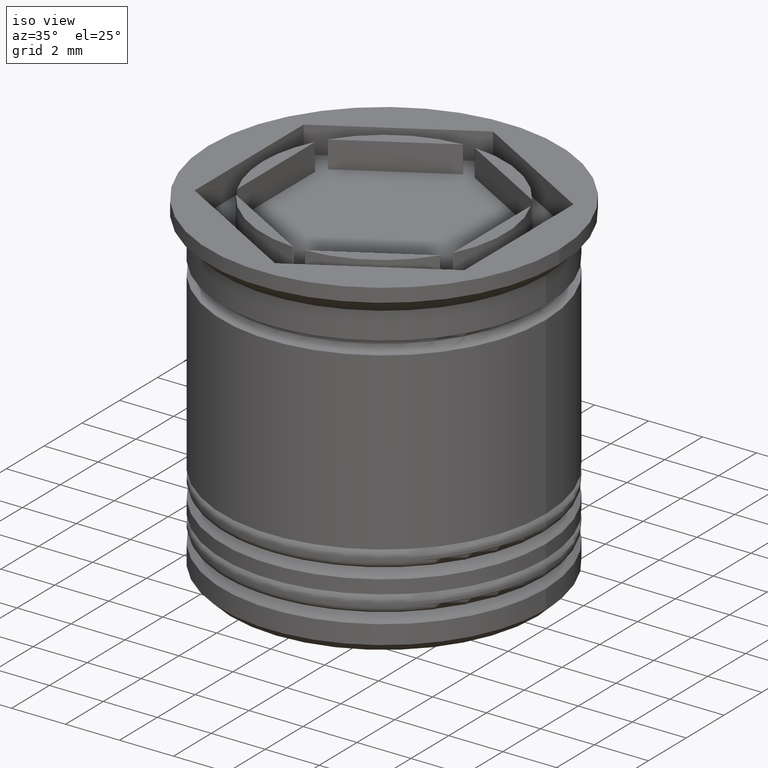
[diagram: clean part render]
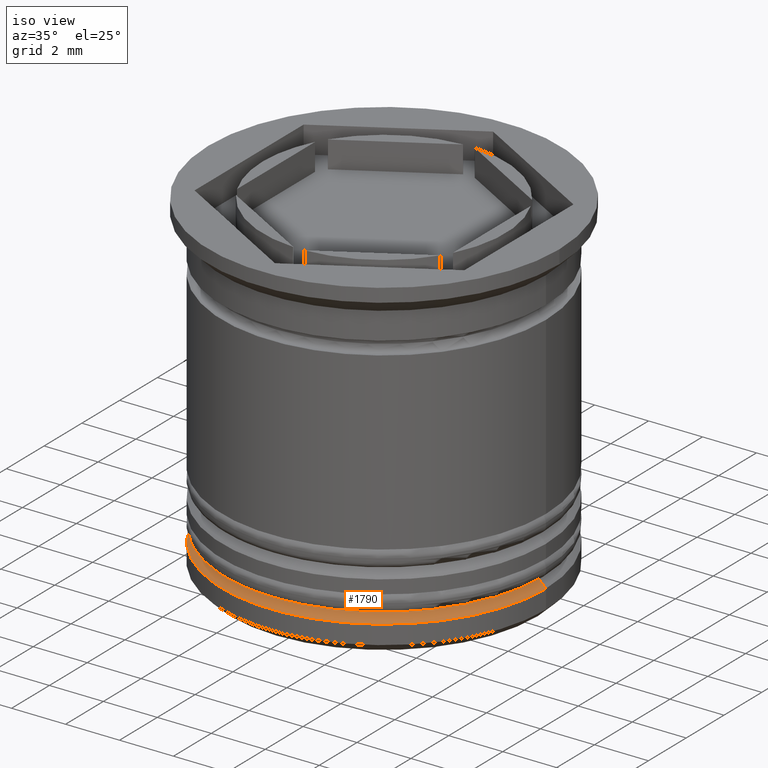
[diagram: same view with one face highlighted and labeled with its STEP entity id]
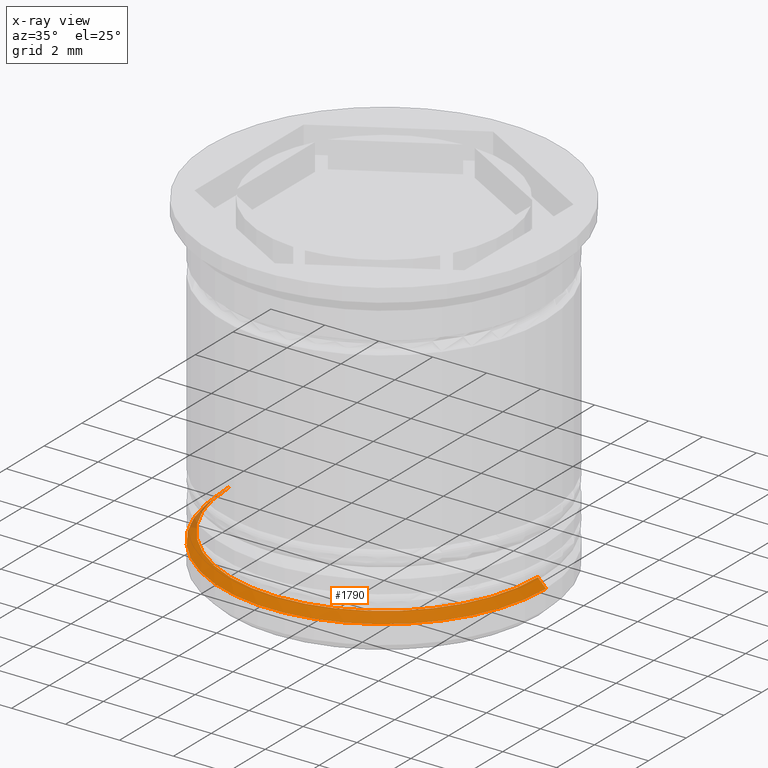
[diagram: x-ray of the same camera — body ghosted, the highlighted face saturated]
A machine part, iso view. The second image highlights one B-rep face of the part: STEP entity #1790.
The next image is the same camera in x-ray: the body ghosted, the highlighted face saturated — about 2% of this face is hidden behind the body in this view.
In plain terms, the highlighted conical surface has half-angle 45 deg.
Its self-contained STEP definition (entity closure, byte-faithful):
#1 = EDGE_CURVE ( 'NONE', #123, #1403, #924, .T. ) ;
#107 = CARTESIAN_POINT ( 'NONE',  ( 5.700000000000000178, 0.000000000000000000, -11.20000000000000639 ) ) ;
#114 = LINE ( 'NONE', #1207, #993 ) ;
#123 = VERTEX_POINT ( 'NONE', #1272 ) ;
#179 = CARTESIAN_POINT ( 'NONE',  ( 0.000000000000000000, 0.000000000000000000, -11.20000000000000639 ) ) ;
#318 = DIRECTION ( 'NONE',  ( -0.000000000000000000, -0.000000000000000000, 1.000000000000000000 ) ) ;
#322 = CONICAL_SURFACE ( 'NONE', #779, 5.499999999999992895, 0.7853981633974533860 ) ;
#329 = DIRECTION ( 'NONE',  ( -1.000000000000000000, 0.000000000000000000, 0.000000000000000000 ) ) ;
#405 = VERTEX_POINT ( 'NONE', #107 ) ;
#475 = CARTESIAN_POINT ( 'NONE',  ( 5.499999999999992895, 6.735557395310433148E-16, -11.00000000000000178 ) ) ;
#532 = CARTESIAN_POINT ( 'NONE',  ( -6.000000000000001776, 7.347880794884121708E-16, -11.50000000000000533 ) ) ;
#558 = DIRECTION ( 'NONE',  ( 0.000000000000000000, 0.000000000000000000, -1.000000000000000000 ) ) ;
#615 = EDGE_CURVE ( 'NONE', #405, #123, #644, .T. ) ;
#644 = LINE ( 'NONE', #475, #1763 ) ;
#681 = AXIS2_PLACEMENT_3D ( 'NONE', #179, #318, #329 ) ;
#720 = ORIENTED_EDGE ( 'NONE', *, *, #1802, .F. ) ;
#752 = DIRECTION ( 'NONE',  ( -1.000000000000000000, 0.000000000000000000, 0.000000000000000000 ) ) ;
#779 = AXIS2_PLACEMENT_3D ( 'NONE', #1958, #1811, #752 ) ;
#809 = EDGE_CURVE ( 'NONE', #1866, #1403, #114, .T. ) ;
#924 = CIRCLE ( 'NONE', #1577, 6.000000000000001776 ) ;
#993 = VECTOR ( 'NONE', #1789, 1000.000000000000000 ) ;
#1012 = CARTESIAN_POINT ( 'NONE',  ( 0.000000000000000000, 0.000000000000000000, -11.50000000000000533 ) ) ;
#1170 = FACE_OUTER_BOUND ( 'NONE', #1337, .T. ) ;
#1173 = DIRECTION ( 'NONE',  ( -1.000000000000000000, 0.000000000000000000, 0.000000000000000000 ) ) ;
#1205 = ORIENTED_EDGE ( 'NONE', *, *, #1, .F. ) ;
#1207 = CARTESIAN_POINT ( 'NONE',  ( -5.499999999999992895, 0.000000000000000000, -11.00000000000000178 ) ) ;
#1233 = CIRCLE ( 'NONE', #681, 5.700000000000000178 ) ;
#1248 = CARTESIAN_POINT ( 'NONE',  ( -5.700000000000000178, 6.980486755139913108E-16, -11.20000000000000639 ) ) ;
#1272 = CARTESIAN_POINT ( 'NONE',  ( 6.000000000000001776, 0.000000000000000000, -11.50000000000000533 ) ) ;
#1337 = EDGE_LOOP ( 'NONE', ( #1566, #720, #1681, #1205 ) ) ;
#1403 = VERTEX_POINT ( 'NONE', #532 ) ;
#1566 = ORIENTED_EDGE ( 'NONE', *, *, #615, .F. ) ;
#1575 = DIRECTION ( 'NONE',  ( 0.7071067811865512365, 8.659560562354978464E-17, -0.7071067811865439090 ) ) ;
#1577 = AXIS2_PLACEMENT_3D ( 'NONE', #1012, #558, #1173 ) ;
#1681 = ORIENTED_EDGE ( 'NONE', *, *, #809, .T. ) ;
#1763 = VECTOR ( 'NONE', #1575, 1000.000000000000000 ) ;
#1789 = DIRECTION ( 'NONE',  ( -0.7071067811865512365, 0.000000000000000000, -0.7071067811865439090 ) ) ;
#1790 = ADVANCED_FACE ( 'NONE', ( #1170 ), #322, .T. ) ;
#1802 = EDGE_CURVE ( 'NONE', #1866, #405, #1233, .T. ) ;
#1811 = DIRECTION ( 'NONE',  ( 0.000000000000000000, 0.000000000000000000, -1.000000000000000000 ) ) ;
#1866 = VERTEX_POINT ( 'NONE', #1248 ) ;
#1958 = CARTESIAN_POINT ( 'NONE',  ( 0.000000000000000000, 0.000000000000000000, -11.00000000000000178 ) ) ;